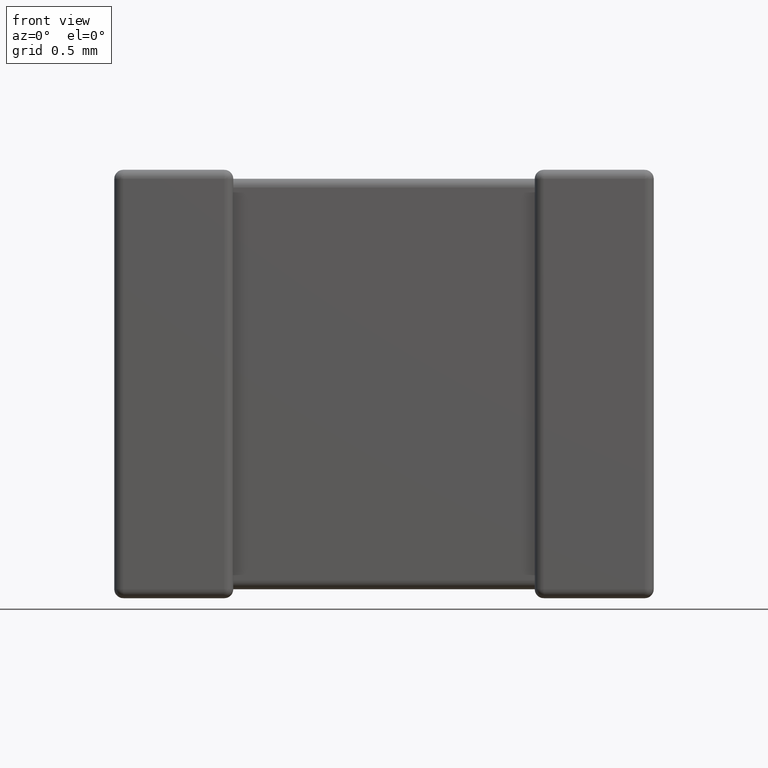
[diagram: clean part render]
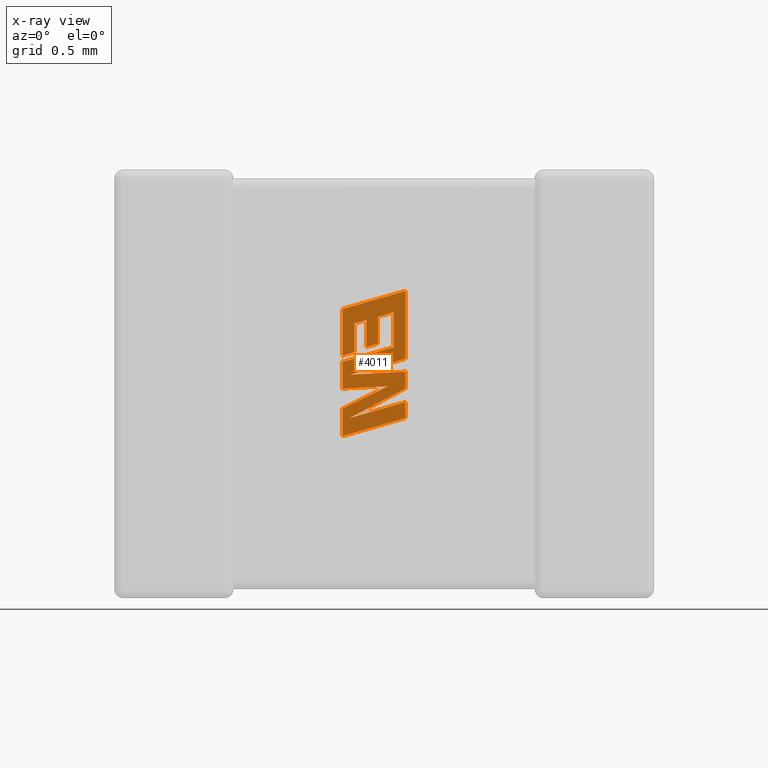
[diagram: x-ray — body ghosted, one internal face saturated and labeled with its STEP entity id]
A machine part, front view, then the same camera in x-ray: the body is ghosted and one INTERNAL B-rep face — a face not visible from any outside direction — is saturated and labeled: STEP entity #4011.
In plain terms, the highlighted planar face has unit normal (0, -1, 0).
Its self-contained STEP definition (entity closure, byte-faithful):
#54 = DIRECTION ( 'NONE',  ( 0.000000000000000000, 0.000000000000000000, -1.000000000000000000 ) ) ;
#58 = VERTEX_POINT ( 'NONE', #3619 ) ;
#79 = VERTEX_POINT ( 'NONE', #1433 ) ;
#106 = LINE ( 'NONE', #2254, #2066 ) ;
#125 = DIRECTION ( 'NONE',  ( 0.9610853065513847993, 0.000000000000000000, 0.2762517575166369976 ) ) ;
#131 = DIRECTION ( 'NONE',  ( 0.9611542233438713501, 0.000000000000000000, 0.2760118818968482213 ) ) ;
#156 = CARTESIAN_POINT ( 'NONE',  ( 1.836000000000006738, 1.493839999999999835, -1.272980965228251771 ) ) ;
#174 = CARTESIAN_POINT ( 'NONE',  ( 1.760483870298813924, 1.493839999999999835, -1.118372642657951666 ) ) ;
#227 = CARTESIAN_POINT ( 'NONE',  ( 1.836000000000006738, 1.493839999999999835, -1.120671798919335327 ) ) ;
#232 = ORIENTED_EDGE ( 'NONE', *, *, #3417, .F. ) ;
#235 = DIRECTION ( 'NONE',  ( -0.9610674221107078363, 0.000000000000000000, -0.2763139702539094689 ) ) ;
#268 = VERTEX_POINT ( 'NONE', #156 ) ;
#312 = DIRECTION ( 'NONE',  ( 0.000000000000000000, 0.000000000000000000, 1.000000000000000000 ) ) ;
#319 = VECTOR ( 'NONE', #2863, 1000.000000000000227 ) ;
#389 = ORIENTED_EDGE ( 'NONE', *, *, #3350, .F. ) ;
#392 = EDGE_CURVE ( 'NONE', #1670, #2755, #3952, .T. ) ;
#397 = VECTOR ( 'NONE', #1256, 1000.000000000000000 ) ;
#431 = CARTESIAN_POINT ( 'NONE',  ( 1.760483870298813924, 1.493839999999999835, -1.118372642657951666 ) ) ;
#446 = VECTOR ( 'NONE', #2721, 1000.000000000000000 ) ;
#465 = CARTESIAN_POINT ( 'NONE',  ( 1.439070229052686667, 1.493839999999999835, -1.210758909182688026 ) ) ;
#479 = LINE ( 'NONE', #4071, #2284 ) ;
#487 = CARTESIAN_POINT ( 'NONE',  ( 1.439070229052686667, 1.493839999999999835, -1.505174769309383320 ) ) ;
#491 = ORIENTED_EDGE ( 'NONE', *, *, #3073, .F. ) ;
#528 = CARTESIAN_POINT ( 'NONE',  ( 1.439070229052686667, 1.493839999999999835, -1.171167553601791367 ) ) ;
#567 = VERTEX_POINT ( 'NONE', #1237 ) ;
#586 = DIRECTION ( 'NONE',  ( 0.9610029908221285888, 0.000000000000000000, 0.2765379750249931101 ) ) ;
#607 = CARTESIAN_POINT ( 'NONE',  ( 1.722641957339287710, 1.493839999999999835, -1.364532471788447276 ) ) ;
#633 = ORIENTED_EDGE ( 'NONE', *, *, #3729, .F. ) ;
#727 = EDGE_CURVE ( 'NONE', #1886, #567, #3197, .T. ) ;
#741 = ORIENTED_EDGE ( 'NONE', *, *, #727, .F. ) ;
#776 = EDGE_CURVE ( 'NONE', #4505, #3166, #1568, .T. ) ;
#787 = EDGE_CURVE ( 'NONE', #4290, #1670, #2655, .T. ) ;
#801 = DIRECTION ( 'NONE',  ( -0.9615454294334447871, 0.000000000000000000, -0.2746459304917006072 ) ) ;
#813 = EDGE_CURVE ( 'NONE', #2631, #1487, #3715, .T. ) ;
#829 = CARTESIAN_POINT ( 'NONE',  ( 1.760483870298813924, 1.493839999999999835, -0.8983367201675375169 ) ) ;
#884 = DIRECTION ( 'NONE',  ( 0.000000000000000000, 0.000000000000000000, 1.000000000000000000 ) ) ;
#986 = ORIENTED_EDGE ( 'NONE', *, *, #4047, .F. ) ;
#993 = VERTEX_POINT ( 'NONE', #3687 ) ;
#1006 = VECTOR ( 'NONE', #3743, 1000.000000000000000 ) ;
#1096 = VECTOR ( 'NONE', #131, 999.9999999999998863 ) ;
#1104 = EDGE_CURVE ( 'NONE', #2762, #2393, #4141, .T. ) ;
#1114 = ORIENTED_EDGE ( 'NONE', *, *, #1104, .F. ) ;
#1117 = PLANE ( 'NONE',  #2289 ) ;
#1118 = VERTEX_POINT ( 'NONE', #4124 ) ;
#1120 = CARTESIAN_POINT ( 'NONE',  ( 1.588452647486523484, 1.493839999999999835, -0.9473805662053309540 ) ) ;
#1121 = CARTESIAN_POINT ( 'NONE',  ( 1.836000000000006738, 1.493839999999999835, -1.565145231322540464 ) ) ;
#1136 = EDGE_CURVE ( 'NONE', #2393, #4320, #1666, .T. ) ;
#1139 = FACE_OUTER_BOUND ( 'NONE', #1166, .T. ) ;
#1142 = CARTESIAN_POINT ( 'NONE',  ( 1.836000000000006738, 1.493839999999999835, -1.464279240854371889 ) ) ;
#1147 = LINE ( 'NONE', #1621, #3369 ) ;
#1158 = ORIENTED_EDGE ( 'NONE', *, *, #392, .F. ) ;
#1162 = CARTESIAN_POINT ( 'NONE',  ( 1.836000000000006738, 1.493839999999999835, -1.565145231322540464 ) ) ;
#1164 = EDGE_CURVE ( 'NONE', #4547, #2709, #3782, .T. ) ;
#1166 = EDGE_LOOP ( 'NONE', ( #389, #986, #2286, #633, #741, #491, #2467, #3164, #2653, #1114, #3623, #1527, #1771, #1158, #3716, #4078, #2000, #4638, #232, #1985, #3912, #1865, #2247 ) ) ;
#1235 = VECTOR ( 'NONE', #1370, 1000.000000000000114 ) ;
#1237 = CARTESIAN_POINT ( 'NONE',  ( 1.480922120208878701, 1.493839999999999835, -1.566245929904677148 ) ) ;
#1256 = DIRECTION ( 'NONE',  ( 0.000000000000000000, 0.000000000000000000, 1.000000000000000000 ) ) ;
#1283 = LINE ( 'NONE', #4138, #1541 ) ;
#1287 = CARTESIAN_POINT ( 'NONE',  ( 1.836000000000006738, 1.493839999999999835, -0.7637087314246739922 ) ) ;
#1370 = DIRECTION ( 'NONE',  ( -0.8843386665637650301, 0.000000000000000000, -0.4668459304955136502 ) ) ;
#1420 = LINE ( 'NONE', #3539, #4187 ) ;
#1433 = CARTESIAN_POINT ( 'NONE',  ( 1.836000000000006738, 1.493839999999999835, -1.464279240854371889 ) ) ;
#1487 = VERTEX_POINT ( 'NONE', #174 ) ;
#1518 = LINE ( 'NONE', #1162, #2451 ) ;
#1527 = ORIENTED_EDGE ( 'NONE', *, *, #1164, .F. ) ;
#1539 = VECTOR ( 'NONE', #1884, 1000.000000000000114 ) ;
#1541 = VECTOR ( 'NONE', #4159, 1000.000000000000227 ) ;
#1568 = LINE ( 'NONE', #1906, #1539 ) ;
#1595 = CARTESIAN_POINT ( 'NONE',  ( 1.439070229052686667, 1.493839999999999835, -1.210758909182688026 ) ) ;
#1621 = CARTESIAN_POINT ( 'NONE',  ( 1.439070229052686667, 1.493839999999999835, -1.379797255758040908 ) ) ;
#1639 = CARTESIAN_POINT ( 'NONE',  ( 1.439070229052686667, 1.493839999999999835, -1.171167553601791367 ) ) ;
#1666 = LINE ( 'NONE', #227, #446 ) ;
#1669 = VERTEX_POINT ( 'NONE', #3297 ) ;
#1670 = VERTEX_POINT ( 'NONE', #1120 ) ;
#1767 = EDGE_CURVE ( 'NONE', #2755, #4547, #3023, .T. ) ;
#1771 = ORIENTED_EDGE ( 'NONE', *, *, #1767, .F. ) ;
#1811 = CARTESIAN_POINT ( 'NONE',  ( 1.836000000000006738, 1.493839999999999835, -1.378798892409895727 ) ) ;
#1834 = VECTOR ( 'NONE', #2928, 1000.000000000000000 ) ;
#1865 = ORIENTED_EDGE ( 'NONE', *, *, #2714, .F. ) ;
#1884 = DIRECTION ( 'NONE',  ( 0.8958676361826827250, 0.000000000000000000, 0.4443210308329466063 ) ) ;
#1886 = VERTEX_POINT ( 'NONE', #1811 ) ;
#1906 = CARTESIAN_POINT ( 'NONE',  ( 1.439070229052686667, 1.493839999999999835, -1.505174769309383320 ) ) ;
#1908 = CARTESIAN_POINT ( 'NONE',  ( -0.8277549025643631264, 1.493839999999999835, 0.006109351898183301016 ) ) ;
#1920 = EDGE_CURVE ( 'NONE', #3937, #1118, #3576, .T. ) ;
#1929 = VECTOR ( 'NONE', #801, 1000.000000000000114 ) ;
#1985 = ORIENTED_EDGE ( 'NONE', *, *, #813, .F. ) ;
#2000 = ORIENTED_EDGE ( 'NONE', *, *, #3850, .F. ) ;
#2066 = VECTOR ( 'NONE', #3717, 1000.000000000000000 ) ;
#2088 = CARTESIAN_POINT ( 'NONE',  ( 1.836000000000006738, 1.493839999999999835, -1.191324096069252159 ) ) ;
#2093 = DIRECTION ( 'NONE',  ( 0.000000000000000000, 0.000000000000000000, -1.000000000000000000 ) ) ;
#2182 = DIRECTION ( 'NONE',  ( 0.000000000000000000, -1.000000000000000000, 0.000000000000000000 ) ) ;
#2202 = VECTOR ( 'NONE', #54, 1000.000000000000000 ) ;
#2245 = LINE ( 'NONE', #3014, #1929 ) ;
#2247 = ORIENTED_EDGE ( 'NONE', *, *, #776, .F. ) ;
#2254 = CARTESIAN_POINT ( 'NONE',  ( 1.836000000000006738, 1.493839999999999835, -1.191324096069252159 ) ) ;
#2258 = DIRECTION ( 'NONE',  ( 0.9984327301130250243, 0.000000000000000000, 0.05596501978067342647 ) ) ;
#2259 = CARTESIAN_POINT ( 'NONE',  ( 1.588452647486523484, 1.493839999999999835, -1.117747465174933730 ) ) ;
#2272 = LINE ( 'NONE', #1142, #1006 ) ;
#2284 = VECTOR ( 'NONE', #2258, 1000.000000000000227 ) ;
#2286 = ORIENTED_EDGE ( 'NONE', *, *, #2946, .F. ) ;
#2287 = LINE ( 'NONE', #431, #4573 ) ;
#2289 = AXIS2_PLACEMENT_3D ( 'NONE', #1908, #2182, #3644 ) ;
#2301 = CARTESIAN_POINT ( 'NONE',  ( 1.588452647486523484, 1.493839999999999835, -1.117747465174933730 ) ) ;
#2393 = VERTEX_POINT ( 'NONE', #1287 ) ;
#2451 = VECTOR ( 'NONE', #235, 1000.000000000000227 ) ;
#2467 = ORIENTED_EDGE ( 'NONE', *, *, #3418, .F. ) ;
#2534 = LINE ( 'NONE', #2555, #2202 ) ;
#2555 = CARTESIAN_POINT ( 'NONE',  ( 1.836000000000006738, 1.493839999999999835, -1.272980965228251771 ) ) ;
#2622 = CARTESIAN_POINT ( 'NONE',  ( 1.482623858147629869, 1.493839999999999835, -1.292788712082211244 ) ) ;
#2631 = VERTEX_POINT ( 'NONE', #1595 ) ;
#2641 = DIRECTION ( 'NONE',  ( 0.000000000000000000, 0.000000000000000000, 1.000000000000000000 ) ) ;
#2653 = ORIENTED_EDGE ( 'NONE', *, *, #1136, .F. ) ;
#2655 = LINE ( 'NONE', #2301, #397 ) ;
#2709 = VERTEX_POINT ( 'NONE', #1639 ) ;
#2714 = EDGE_CURVE ( 'NONE', #3166, #58, #1283, .T. ) ;
#2721 = DIRECTION ( 'NONE',  ( 0.000000000000000000, 0.000000000000000000, -1.000000000000000000 ) ) ;
#2755 = VERTEX_POINT ( 'NONE', #3925 ) ;
#2762 = VERTEX_POINT ( 'NONE', #3978 ) ;
#2841 = CARTESIAN_POINT ( 'NONE',  ( 1.514623772849683414, 1.493839999999999835, -1.149708758874154357 ) ) ;
#2863 = DIRECTION ( 'NONE',  ( -0.9601763114327565019, 0.000000000000000000, -0.2793947940878393488 ) ) ;
#2928 = DIRECTION ( 'NONE',  ( -0.9617234872620624708, 0.000000000000000000, -0.2740217765953968376 ) ) ;
#2946 = EDGE_CURVE ( 'NONE', #79, #2979, #2272, .T. ) ;
#2951 = LINE ( 'NONE', #3024, #1096 ) ;
#2968 = VECTOR ( 'NONE', #125, 1000.000000000000000 ) ;
#2979 = VERTEX_POINT ( 'NONE', #1121 ) ;
#3009 = LINE ( 'NONE', #4119, #3136 ) ;
#3014 = CARTESIAN_POINT ( 'NONE',  ( 1.661831346058584735, 1.493839999999999835, -1.096788329672133688 ) ) ;
#3023 = LINE ( 'NONE', #4134, #4167 ) ;
#3024 = CARTESIAN_POINT ( 'NONE',  ( 1.480922120208878701, 1.493839999999999835, -1.566245929904677148 ) ) ;
#3073 = EDGE_CURVE ( 'NONE', #268, #1886, #2534, .T. ) ;
#3136 = VECTOR ( 'NONE', #4476, 1000.000000000000000 ) ;
#3164 = ORIENTED_EDGE ( 'NONE', *, *, #3720, .F. ) ;
#3166 = VERTEX_POINT ( 'NONE', #607 ) ;
#3172 = CARTESIAN_POINT ( 'NONE',  ( 1.836000000000006738, 1.493839999999999835, -1.378798892409895727 ) ) ;
#3197 = LINE ( 'NONE', #3172, #1235 ) ;
#3251 = CARTESIAN_POINT ( 'NONE',  ( 1.588452647486523484, 1.493839999999999835, -0.9473805662053309540 ) ) ;
#3297 = CARTESIAN_POINT ( 'NONE',  ( 1.661831346058584735, 1.493839999999999835, -1.096788329672133688 ) ) ;
#3350 = EDGE_CURVE ( 'NONE', #993, #4505, #3009, .T. ) ;
#3369 = VECTOR ( 'NONE', #2641, 1000.000000000000000 ) ;
#3404 = VECTOR ( 'NONE', #4552, 999.9999999999998863 ) ;
#3409 = VERTEX_POINT ( 'NONE', #2622 ) ;
#3417 = EDGE_CURVE ( 'NONE', #1487, #3937, #2287, .T. ) ;
#3418 = EDGE_CURVE ( 'NONE', #3409, #268, #479, .T. ) ;
#3447 = EDGE_CURVE ( 'NONE', #58, #2631, #1147, .T. ) ;
#3539 = CARTESIAN_POINT ( 'NONE',  ( 1.661831346058584735, 1.493839999999999835, -0.9264455688293166125 ) ) ;
#3576 = LINE ( 'NONE', #3608, #1834 ) ;
#3608 = CARTESIAN_POINT ( 'NONE',  ( 1.760483870298813924, 1.493839999999999835, -0.8983367201675375169 ) ) ;
#3619 = CARTESIAN_POINT ( 'NONE',  ( 1.439070229052686667, 1.493839999999999835, -1.379797255758040908 ) ) ;
#3623 = ORIENTED_EDGE ( 'NONE', *, *, #4533, .F. ) ;
#3644 = DIRECTION ( 'NONE',  ( 0.000000000000000000, 0.000000000000000000, -1.000000000000000000 ) ) ;
#3687 = CARTESIAN_POINT ( 'NONE',  ( 1.439070229052686667, 1.493839999999999835, -1.679265467217702534 ) ) ;
#3703 = VECTOR ( 'NONE', #586, 1000.000000000000114 ) ;
#3715 = LINE ( 'NONE', #465, #2968 ) ;
#3716 = ORIENTED_EDGE ( 'NONE', *, *, #787, .F. ) ;
#3717 = DIRECTION ( 'NONE',  ( -0.9611638845408968512, 0.000000000000000000, -0.2759782365590690567 ) ) ;
#3720 = EDGE_CURVE ( 'NONE', #4320, #3409, #106, .T. ) ;
#3729 = EDGE_CURVE ( 'NONE', #567, #79, #2951, .T. ) ;
#3743 = DIRECTION ( 'NONE',  ( 0.000000000000000000, 0.000000000000000000, -1.000000000000000000 ) ) ;
#3782 = LINE ( 'NONE', #3802, #3404 ) ;
#3802 = CARTESIAN_POINT ( 'NONE',  ( 1.514623772849683414, 1.493839999999999835, -1.149708758874154357 ) ) ;
#3850 = EDGE_CURVE ( 'NONE', #1118, #1669, #1420, .T. ) ;
#3912 = ORIENTED_EDGE ( 'NONE', *, *, #3447, .F. ) ;
#3925 = CARTESIAN_POINT ( 'NONE',  ( 1.514623772849683414, 1.493839999999999835, -0.9688634990597322361 ) ) ;
#3937 = VERTEX_POINT ( 'NONE', #829 ) ;
#3952 = LINE ( 'NONE', #3251, #319 ) ;
#3978 = CARTESIAN_POINT ( 'NONE',  ( 1.439070229052686667, 1.493839999999999835, -0.8779291408648176587 ) ) ;
#4011 = ADVANCED_FACE ( 'NONE', ( #1139 ), #1117, .T. ) ;
#4047 = EDGE_CURVE ( 'NONE', #2979, #993, #1518, .T. ) ;
#4071 = CARTESIAN_POINT ( 'NONE',  ( 1.482623858147629869, 1.493839999999999835, -1.292788712082211244 ) ) ;
#4078 = ORIENTED_EDGE ( 'NONE', *, *, #4455, .F. ) ;
#4119 = CARTESIAN_POINT ( 'NONE',  ( 1.439070229052686667, 1.493839999999999835, -1.679265467217702534 ) ) ;
#4124 = CARTESIAN_POINT ( 'NONE',  ( 1.661831346058584735, 1.493839999999999835, -0.9264455688293166125 ) ) ;
#4126 = LINE ( 'NONE', #528, #4427 ) ;
#4134 = CARTESIAN_POINT ( 'NONE',  ( 1.514623772849683414, 1.493839999999999835, -0.9688634990597322361 ) ) ;
#4138 = CARTESIAN_POINT ( 'NONE',  ( 1.722641957339287710, 1.493839999999999835, -1.364532471788447276 ) ) ;
#4141 = LINE ( 'NONE', #4217, #3703 ) ;
#4159 = DIRECTION ( 'NONE',  ( -0.9985542843760948362, 0.000000000000000000, -0.05375259206908062498 ) ) ;
#4167 = VECTOR ( 'NONE', #4521, 1000.000000000000000 ) ;
#4187 = VECTOR ( 'NONE', #2093, 1000.000000000000000 ) ;
#4217 = CARTESIAN_POINT ( 'NONE',  ( 1.439070229052686667, 1.493839999999999835, -0.8779291408648176587 ) ) ;
#4290 = VERTEX_POINT ( 'NONE', #2259 ) ;
#4320 = VERTEX_POINT ( 'NONE', #2088 ) ;
#4427 = VECTOR ( 'NONE', #312, 1000.000000000000000 ) ;
#4455 = EDGE_CURVE ( 'NONE', #1669, #4290, #2245, .T. ) ;
#4476 = DIRECTION ( 'NONE',  ( 0.000000000000000000, 0.000000000000000000, 1.000000000000000000 ) ) ;
#4505 = VERTEX_POINT ( 'NONE', #487 ) ;
#4521 = DIRECTION ( 'NONE',  ( 0.000000000000000000, 0.000000000000000000, -1.000000000000000000 ) ) ;
#4533 = EDGE_CURVE ( 'NONE', #2709, #2762, #4126, .T. ) ;
#4547 = VERTEX_POINT ( 'NONE', #2841 ) ;
#4552 = DIRECTION ( 'NONE',  ( -0.9619530280415479195, 0.000000000000000000, -0.2732148821746301914 ) ) ;
#4573 = VECTOR ( 'NONE', #884, 1000.000000000000000 ) ;
#4638 = ORIENTED_EDGE ( 'NONE', *, *, #1920, .F. ) ;